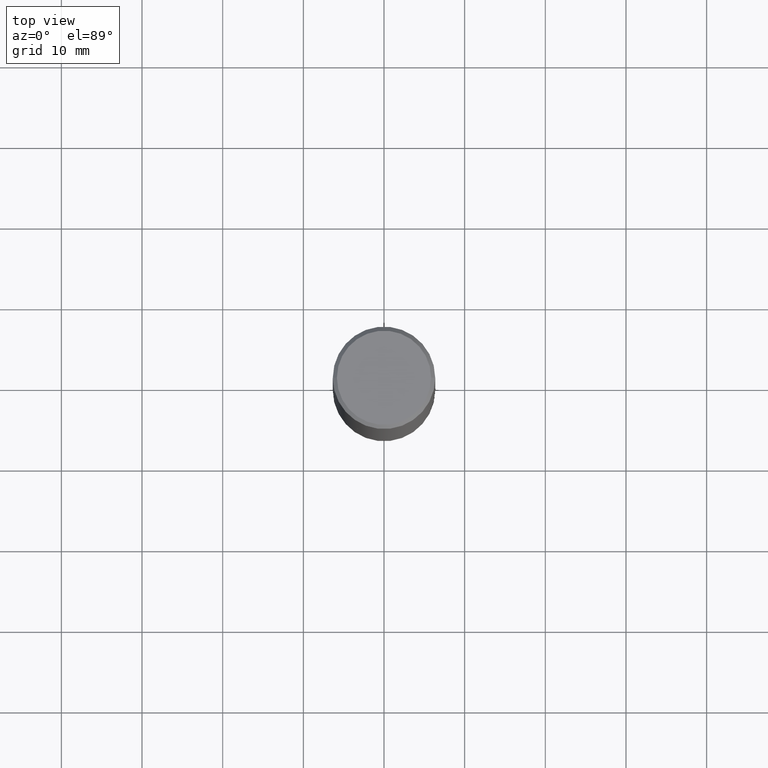
[diagram: clean part render]
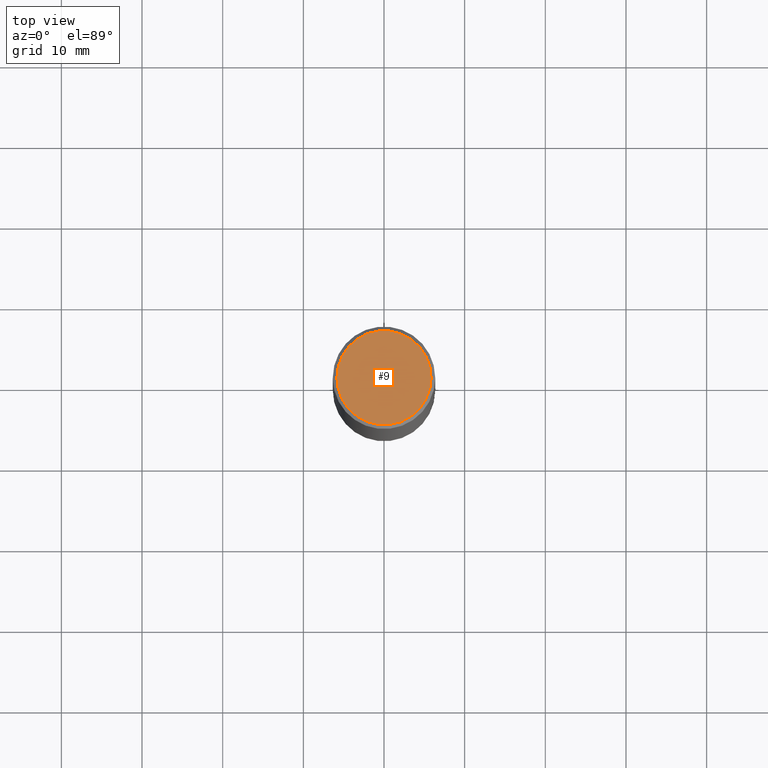
[diagram: same view with one face highlighted and labeled with its STEP entity id]
A machine part, top view. The second image highlights one B-rep face of the part: STEP entity #9.
In plain terms, the highlighted planar face has unit normal (0, -0, -1).
Its self-contained STEP definition (entity closure, byte-faithful):
#9 = ADVANCED_FACE ( 'NONE', ( #195 ), #241, .F. ) ;
#27 = DIRECTION ( 'NONE',  ( -1.000000000000000000, 6.982962677686265922E-15, -4.876176775795935793E-29 ) ) ;
#48 = CIRCLE ( 'NONE', #251, 0.2299999999999999267 ) ;
#62 = EDGE_CURVE ( 'NONE', #265, #186, #48, .T. ) ;
#99 = CARTESIAN_POINT ( 'NONE',  ( 2.087702828670439639E-46, -2.980686340760894400E-32, -8.537024980200822558E-18 ) ) ;
#127 = DIRECTION ( 'NONE',  ( 1.000000000000000000, -6.982962677686267499E-15, 4.876225828469310563E-29 ) ) ;
#178 = AXIS2_PLACEMENT_3D ( 'NONE', #99, #385, #227 ) ;
#186 = VERTEX_POINT ( 'NONE', #261 ) ;
#195 = FACE_OUTER_BOUND ( 'NONE', #237, .T. ) ;
#204 = CARTESIAN_POINT ( 'NONE',  ( -0.2299999999999999267, 1.640996229256272125E-15, -8.537024980212177841E-18 ) ) ;
#227 = DIRECTION ( 'NONE',  ( 1.000000000000000000, -6.982962677686267499E-15, 4.876225828469310563E-29 ) ) ;
#237 = EDGE_LOOP ( 'NONE', ( #368, #274 ) ) ;
#239 = AXIS2_PLACEMENT_3D ( 'NONE', #377, #346, #27 ) ;
#241 = PLANE ( 'NONE',  #239 ) ;
#251 = AXIS2_PLACEMENT_3D ( 'NONE', #284, #413, #127 ) ;
#261 = CARTESIAN_POINT ( 'NONE',  ( 0.2299999999999999267, -1.681434332853598617E-15, -8.537024980189327067E-18 ) ) ;
#265 = VERTEX_POINT ( 'NONE', #204 ) ;
#268 = CIRCLE ( 'NONE', #178, 0.2299999999999999267 ) ;
#274 = ORIENTED_EDGE ( 'NONE', *, *, #352, .T. ) ;
#284 = CARTESIAN_POINT ( 'NONE',  ( 2.087702828670439639E-46, -2.980686340760894400E-32, -8.537024980200822558E-18 ) ) ;
#346 = DIRECTION ( 'NONE',  ( 2.438088387897960049E-29, -3.491481338843145188E-15, -1.000000000000000000 ) ) ;
#352 = EDGE_CURVE ( 'NONE', #186, #265, #268, .T. ) ;
#368 = ORIENTED_EDGE ( 'NONE', *, *, #62, .T. ) ;
#377 = CARTESIAN_POINT ( 'NONE',  ( 1.606081415867840870E-15, 0.2299999999999999267, -8.073092204240237214E-16 ) ) ;
#385 = DIRECTION ( 'NONE',  ( -2.445468806185136597E-29, 3.491481338843145583E-15, 1.000000000000000000 ) ) ;
#413 = DIRECTION ( 'NONE',  ( -2.445468806185136597E-29, 3.491481338843145583E-15, 1.000000000000000000 ) ) ;